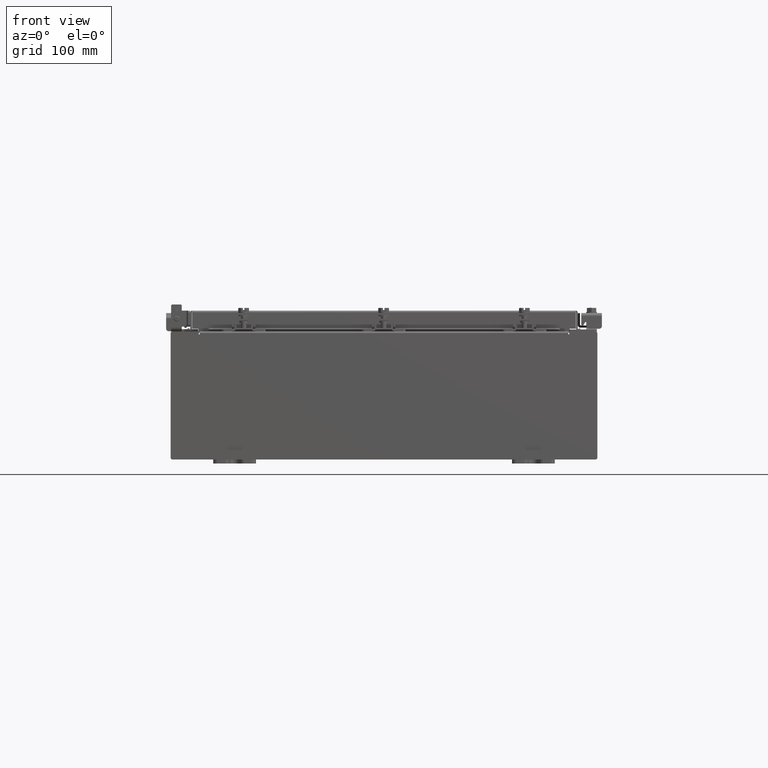
[diagram: clean part render]
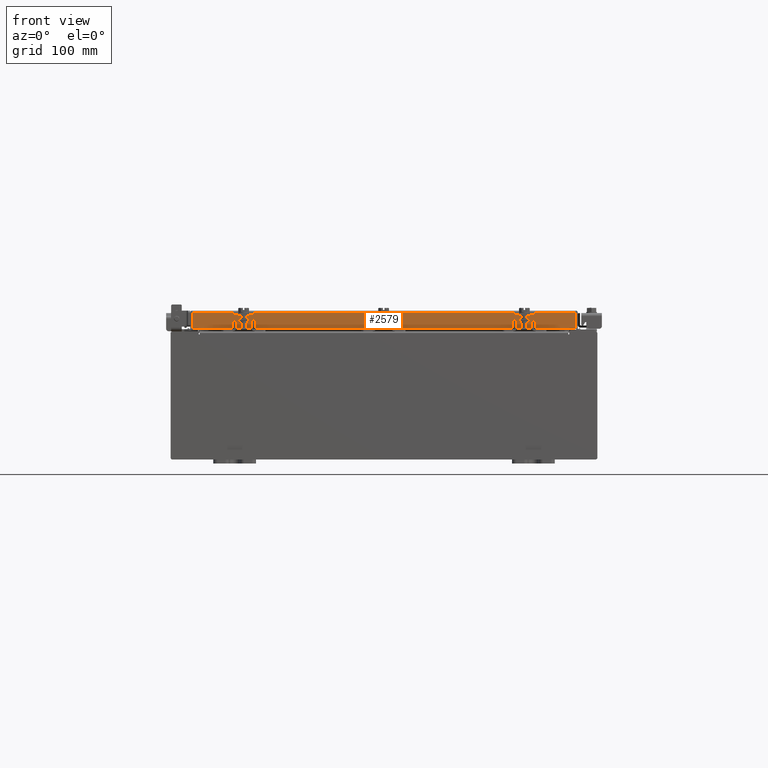
[diagram: same view with one face highlighted and labeled with its STEP entity id]
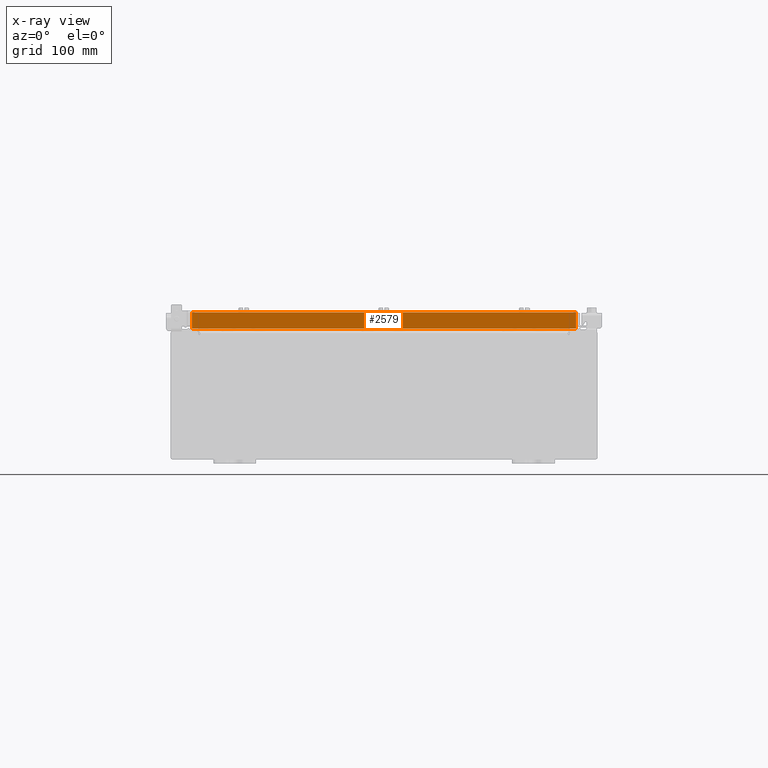
[diagram: x-ray of the same camera — body ghosted, the highlighted face saturated]
A machine part, front view. The second image highlights one B-rep face of the part: STEP entity #2579.
The next image is the same camera in x-ray: the body ghosted, the highlighted face saturated — about 0% of this face is hidden behind the body in this view.
In plain terms, the highlighted planar face has unit normal (-0, 1, -0).
Its self-contained STEP definition (entity closure, byte-faithful):
#581 = LINE ( 'NONE', #6154, #1644 ) ;
#657 = DIRECTION ( 'NONE',  ( -1.000000000000000000, -1.203722403024570700E-016, 1.203722403024570700E-016 ) ) ;
#1480 = CARTESIAN_POINT ( 'NONE',  ( -8.239157864376267100, -11.09399999999999900, -0.8500000000000017500 ) ) ;
#1644 = VECTOR ( 'NONE', #9649, 39.37007874015748100 ) ;
#1683 = VECTOR ( 'NONE', #18369, 39.37007874015748100 ) ;
#2029 = ORIENTED_EDGE ( 'NONE', *, *, #10732, .F. ) ;
#2550 = VERTEX_POINT ( 'NONE', #18496 ) ;
#2579 = ADVANCED_FACE ( 'NONE', ( #15083 ), #6671, .F. ) ;
#2591 = VERTEX_POINT ( 'NONE', #11840 ) ;
#2788 = VECTOR ( 'NONE', #13641, 39.37007874015748100 ) ;
#3168 = ORIENTED_EDGE ( 'NONE', *, *, #11455, .F. ) ;
#3922 = DIRECTION ( 'NONE',  ( -1.000000000000000000, -1.203722403024570700E-016, 1.203722403024570700E-016 ) ) ;
#4309 = CARTESIAN_POINT ( 'NONE',  ( 8.989157864376268800, -11.09400000000000300, -0.8499999999999996400 ) ) ;
#6154 = CARTESIAN_POINT ( 'NONE',  ( -8.989157864376267100, -11.09400000000000100, 3.153347883512815000E-014 ) ) ;
#6671 = PLANE ( 'NONE',  #12283 ) ;
#7253 = EDGE_CURVE ( 'NONE', #20717, #15703, #12150, .T. ) ;
#7552 = CARTESIAN_POINT ( 'NONE',  ( 9.077999999999999400, -11.09400000000000300, -0.8499999999999996400 ) ) ;
#7573 = ORIENTED_EDGE ( 'NONE', *, *, #7253, .F. ) ;
#8034 = CARTESIAN_POINT ( 'NONE',  ( 1.335409633915462800E-015, -11.09400000000000100, 3.153347883512815000E-014 ) ) ;
#8410 = DIRECTION ( 'NONE',  ( -1.203722403024574200E-016, 1.000000000000000000, -2.818880942772360100E-015 ) ) ;
#8880 = CARTESIAN_POINT ( 'NONE',  ( 8.989157864376268800, -11.09400000000000100, -0.07469999999999978000 ) ) ;
#9436 = CARTESIAN_POINT ( 'NONE',  ( 8.989157864376268800, -11.09400000000000100, -0.08770000000000007000 ) ) ;
#9649 = DIRECTION ( 'NONE',  ( 0.0000000000000000000, -2.818880942772360100E-015, -1.000000000000000000 ) ) ;
#10120 = CARTESIAN_POINT ( 'NONE',  ( 8.239157864376268800, -11.09399999999999900, -0.8500000000000017500 ) ) ;
#10732 = EDGE_CURVE ( 'NONE', #2591, #20263, #12033, .T. ) ;
#11322 = EDGE_CURVE ( 'NONE', #20263, #19817, #20748, .T. ) ;
#11455 = EDGE_CURVE ( 'NONE', #2550, #20717, #13934, .T. ) ;
#11473 = VECTOR ( 'NONE', #657, 39.37007874015748100 ) ;
#11840 = CARTESIAN_POINT ( 'NONE',  ( 8.239157864376267100, -11.09399999999999900, -0.8500000000000017500 ) ) ;
#11895 = VECTOR ( 'NONE', #3922, 39.37007874015748100 ) ;
#12033 = LINE ( 'NONE', #10120, #2788 ) ;
#12150 = LINE ( 'NONE', #8880, #20350 ) ;
#12283 = AXIS2_PLACEMENT_3D ( 'NONE', #8034, #8410, #20612 ) ;
#13641 = DIRECTION ( 'NONE',  ( -1.000000000000000000, 0.0000000000000000000, 0.0000000000000000000 ) ) ;
#13934 = LINE ( 'NONE', #16625, #1683 ) ;
#14920 = EDGE_CURVE ( 'NONE', #15703, #2591, #16558, .T. ) ;
#15083 = FACE_OUTER_BOUND ( 'NONE', #21716, .T. ) ;
#15703 = VERTEX_POINT ( 'NONE', #4309 ) ;
#16197 = CARTESIAN_POINT ( 'NONE',  ( -8.989157864376267100, -11.09400000000000700, -0.8499999999999975400 ) ) ;
#16558 = LINE ( 'NONE', #17793, #11895 ) ;
#16625 = CARTESIAN_POINT ( 'NONE',  ( 9.077999999999999400, -11.09400000000000100, -0.08770000000000224800 ) ) ;
#17675 = ORIENTED_EDGE ( 'NONE', *, *, #19365, .T. ) ;
#17793 = CARTESIAN_POINT ( 'NONE',  ( 9.077999999999999400, -11.09400000000000300, -0.8499999999999996400 ) ) ;
#18369 = DIRECTION ( 'NONE',  ( 1.000000000000000000, 1.203722403024567300E-016, -2.407444806049142000E-016 ) ) ;
#18496 = CARTESIAN_POINT ( 'NONE',  ( -8.989157864376267100, -11.09400000000000100, -0.08769999999999789100 ) ) ;
#19331 = DIRECTION ( 'NONE',  ( -0.0000000000000000000, -2.818880942772360100E-015, -1.000000000000000000 ) ) ;
#19365 = EDGE_CURVE ( 'NONE', #2550, #19817, #581, .T. ) ;
#19817 = VERTEX_POINT ( 'NONE', #16197 ) ;
#20263 = VERTEX_POINT ( 'NONE', #1480 ) ;
#20350 = VECTOR ( 'NONE', #19331, 39.37007874015748100 ) ;
#20612 = DIRECTION ( 'NONE',  ( 0.0000000000000000000, 2.818880942772360100E-015, 1.000000000000000000 ) ) ;
#20717 = VERTEX_POINT ( 'NONE', #9436 ) ;
#20748 = LINE ( 'NONE', #7552, #11473 ) ;
#21716 = EDGE_LOOP ( 'NONE', ( #3168, #17675, #22548, #2029, #21903, #7573 ) ) ;
#21903 = ORIENTED_EDGE ( 'NONE', *, *, #14920, .F. ) ;
#22548 = ORIENTED_EDGE ( 'NONE', *, *, #11322, .F. ) ;